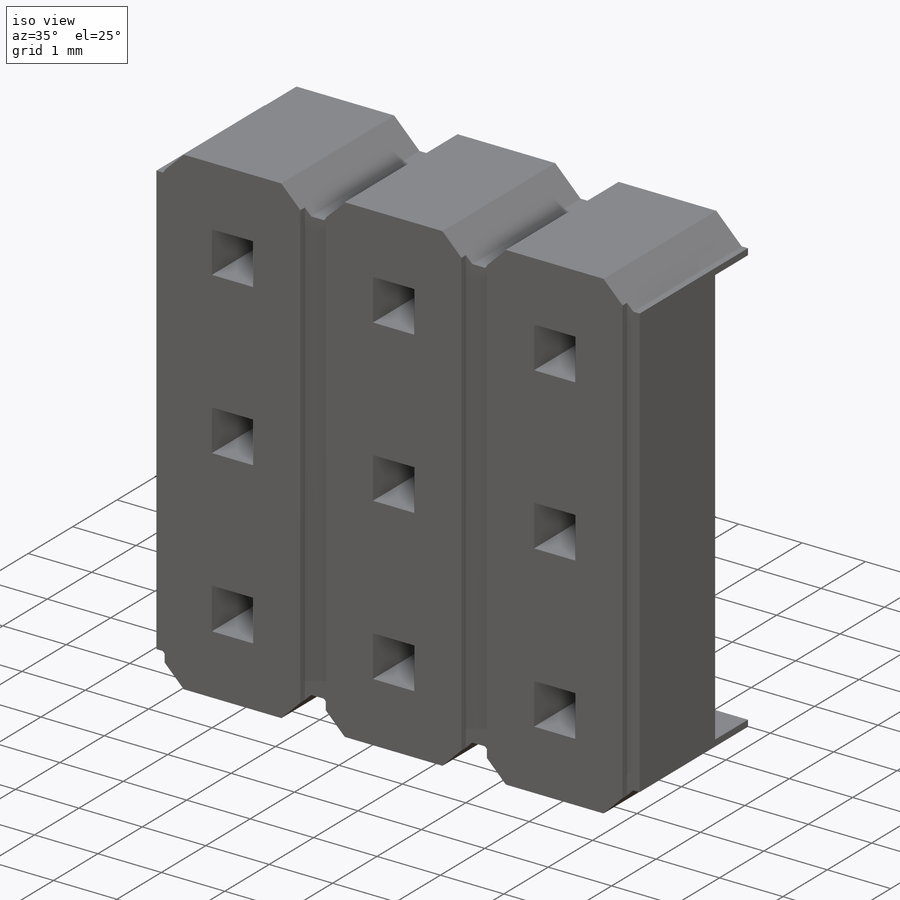
[diagram: iso view]
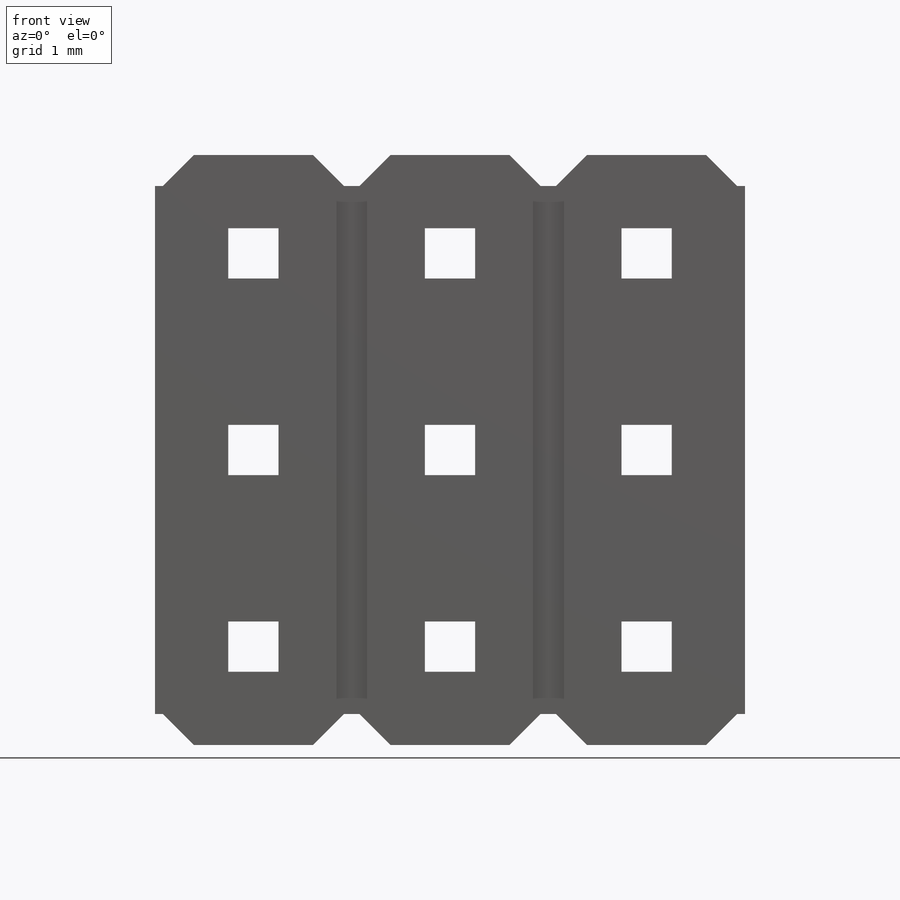
[diagram: front view]
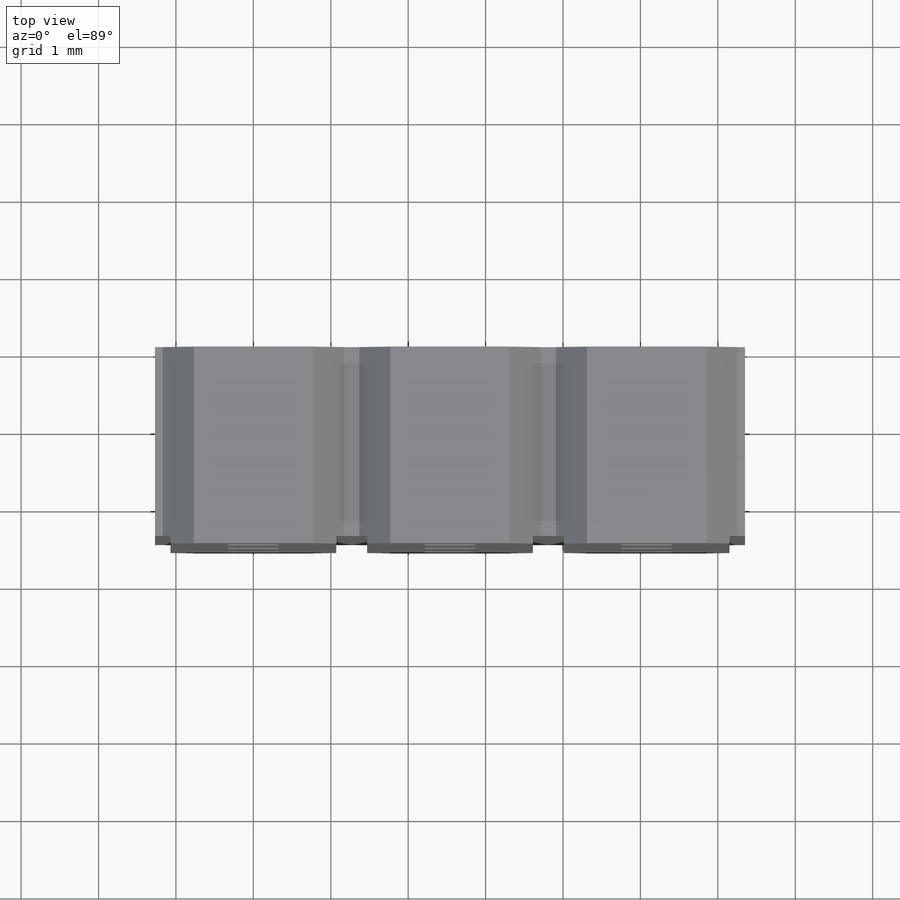
[diagram: top view]
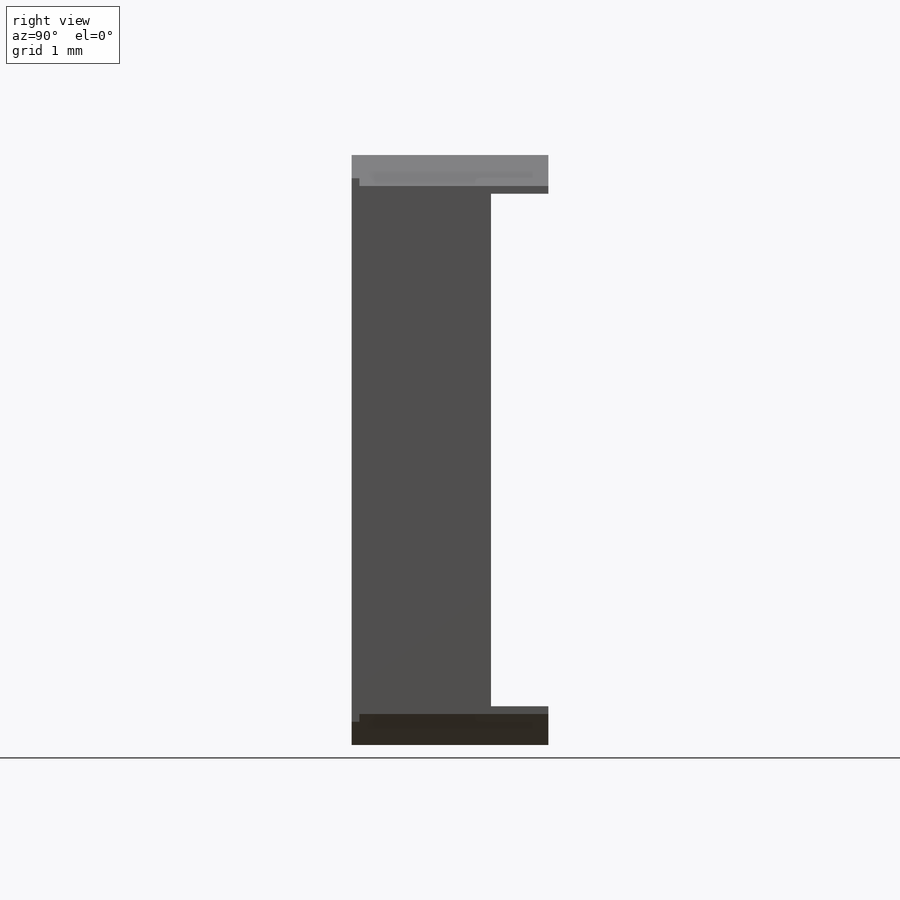
[diagram: right view]
SOLIDWORKS PART (.sldprt)
format: sldprt  version: not decoded by parser v0  size: 5,466,112 bytes
history: native  units: mm
features: sketch x4, plane x3, cut_extrude x3, pattern_linear x2, material x1, extrude x1 + 1 further entry (+11 scaffold rows collapsed)
feature tree (26):
  scaffold x11  (default folders/planes/origin — collapsed)
  material  "Nylon 6/10"
  plane  "Face"
  plane  "Dessus"
  plane  "Droite"
  "Famille de pièces"
  sketch  "Esquisse1"  dims[c1.D1=2.54mm c1.D2=0.5mm c1.D3=45.0deg c1.D4=0.5mm c1.D5=45.0deg c1.D6=0.5mm c1.D7=45.0deg c1.D8=0.5mm c1.D9=45.0deg c2.D1=2.54mm c2.D2=0.5mm c3.D1=2.54mm c3.D3=1.27mm c3.D4=0.77mm c4.D4=45.0deg c4.D2=0.5mm c4.D1=~0.852129mm c5.D1=45.0deg c5.D3=~0.143351mm c6.D1=2.54mm c6.D3=2.54mm c6.D4=~0.504377mm c7.D4=45.0deg c7.D5=0.1mm]
  extrude  "Boss.-Extru.1"  Depth=2.54mm
  sketch  "Esquisse3"  dims[c1.D1=0.25mm c1.D2=0.1mm c2.D1=0.2mm]
  cut_extrude  "Enlèv. mat.-Extru.2"  Depth=0.1mm
  sketch  "Esquisse5"  dims[D1=0.65mm D2=1.27mm]
  cut_extrude  "Enlèv. mat.-Extru.3"  [1 undecoded]
  pattern_linear  "Répétition linéaire1"  Count1=2 Count2=1 Spacing1=2.54mm Spacing2=1mm
  pattern_linear  "Répétition linéaire"  Count1=2 Count2=1 Spacing1=2.54mm Spacing2=50mm
  sketch  "Esquisse2"  dims[D1=0.1mm D2=1.8mm]
  cut_extrude  "Enlèv. mat.-Extru.1"  [1 undecoded]
decode coverage: 8 of 10 modeling features carry decoded parameters; 1 rows unclassified (native names shown)
note: ~ marks probable driven/reference dimensions
note: 2 parameter values undecoded
note: suppression state not decoded; provenance and decode notes live in map.json
